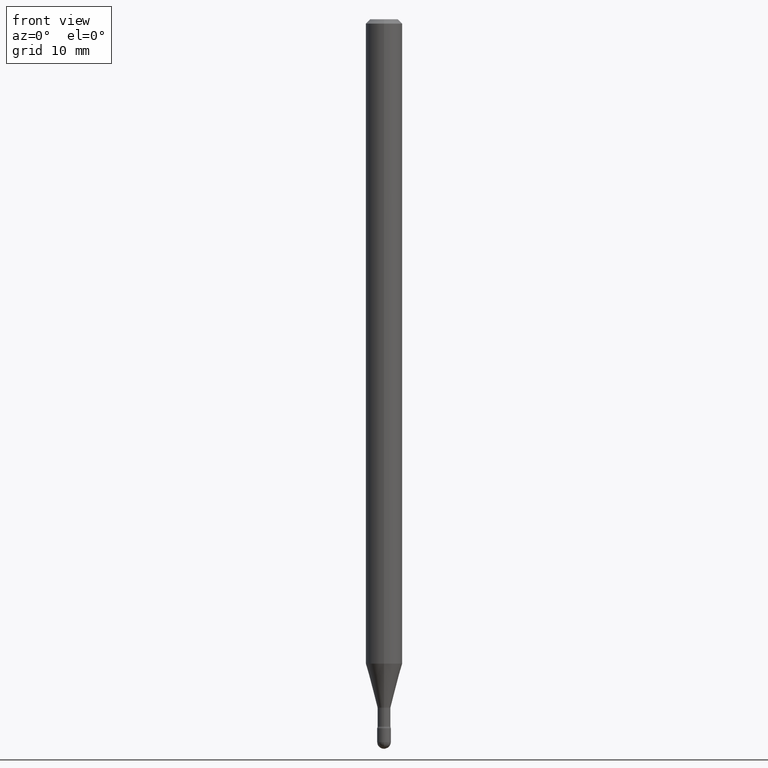
[diagram: clean part render]
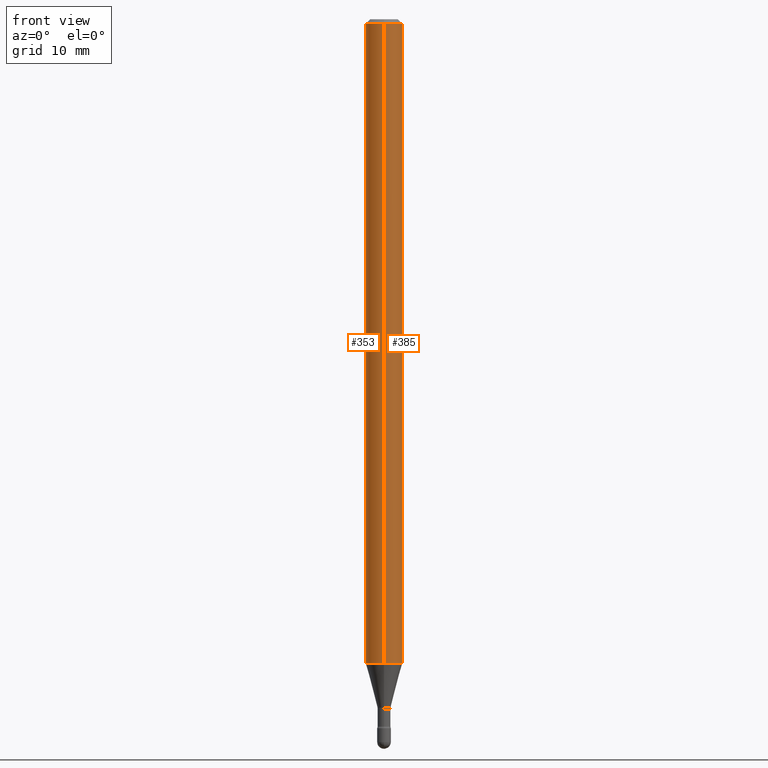
[diagram: same view with one multi-face feature highlighted, each face labeled with its STEP entity id]
A machine part, front view. The highlighted faces form ONE feature: a constant-radius fillet chain: 2 tangent blend faces with common blend radius 1.5875 mm. The faces share edges in the B-rep.
Their STEP definitions:
[1] entity #385 (Cylinder):
#8 = LINE ( 'NONE', #402, #455 ) ;
#15 = ORIENTED_EDGE ( 'NONE', *, *, #129, .T. ) ;
#62 = LINE ( 'NONE', #313, #201 ) ;
#83 = AXIS2_PLACEMENT_3D ( 'NONE', #440, #351, #84 ) ;
#84 = DIRECTION ( 'NONE',  ( -6.982962677686265922E-15, -1.000000000000000000, 3.491495492465867230E-15 ) ) ;
#91 = EDGE_CURVE ( 'NONE', #413, #165, #156, .T. ) ;
#101 = ORIENTED_EDGE ( 'NONE', *, *, #91, .T. ) ;
#104 = ORIENTED_EDGE ( 'NONE', *, *, #169, .F. ) ;
#113 = AXIS2_PLACEMENT_3D ( 'NONE', #359, #495, #173 ) ;
#120 = DIRECTION ( 'NONE',  ( -6.982962677686265922E-15, -1.000000000000000000, 4.370956789862821150E-15 ) ) ;
#129 = EDGE_CURVE ( 'NONE', #165, #405, #8, .T. ) ;
#131 = DIRECTION ( 'NONE',  ( -2.445458922763215307E-29, 3.491495492465866047E-15, 1.000000000000000000 ) ) ;
#156 = CIRCLE ( 'NONE', #179, 0.06250000000000000000 ) ;
#165 = VERTEX_POINT ( 'NONE', #265 ) ;
#169 = EDGE_CURVE ( 'NONE', #413, #503, #62, .T. ) ;
#173 = DIRECTION ( 'NONE',  ( -6.982962677686265922E-15, -1.000000000000000000, 3.483106191921935554E-15 ) ) ;
#179 = AXIS2_PLACEMENT_3D ( 'NONE', #310, #211, #120 ) ;
#181 = CARTESIAN_POINT ( 'NONE',  ( -4.364351673553376817E-16, -0.06250000000000772993, -2.208225147374217379 ) ) ;
#201 = VECTOR ( 'NONE', #131, 39.37007874015748143 ) ;
#211 = DIRECTION ( 'NONE',  ( -2.445458922763215307E-29, 3.491495492465866441E-15, 1.000000000000000000 ) ) ;
#238 = EDGE_CURVE ( 'NONE', #503, #405, #263, .T. ) ;
#263 = CIRCLE ( 'NONE', #113, 0.06250000000000000000 ) ;
#265 = CARTESIAN_POINT ( 'NONE',  ( 4.440892098501163573E-16, 0.06249999999999226313, -2.208225147374217823 ) ) ;
#282 = CARTESIAN_POINT ( 'NONE',  ( -4.364351673553912750E-16, -0.06250000000000005551, -0.01499999999999986587 ) ) ;
#295 = ORIENTED_EDGE ( 'NONE', *, *, #238, .F. ) ;
#310 = CARTESIAN_POINT ( 'NONE',  ( 5.400123890116396966E-29, -7.710008148406855528E-15, -2.208225147374217823 ) ) ;
#313 = CARTESIAN_POINT ( 'NONE',  ( -4.364351673553916201E-16, -0.06250000000000000000, 6.962918671703627158E-16 ) ) ;
#351 = DIRECTION ( 'NONE',  ( -2.445458922763215307E-29, 3.491495492465866441E-15, 1.000000000000000000 ) ) ;
#352 = FACE_OUTER_BOUND ( 'NONE', #551, .T. ) ;
#359 = CARTESIAN_POINT ( 'NONE',  ( 3.668188384144842719E-31, -5.237243238698828652E-17, -0.01500000000000008271 ) ) ;
#385 = ADVANCED_FACE ( 'NONE', ( #352 ), #397, .T. ) ;
#397 = CYLINDRICAL_SURFACE ( 'NONE', #83, 0.06250000000000000000 ) ;
#402 = CARTESIAN_POINT ( 'NONE',  ( 4.440892098500625669E-16, 0.06250000000000000000, 2.598549306121294107E-16 ) ) ;
#405 = VERTEX_POINT ( 'NONE', #419 ) ;
#413 = VERTEX_POINT ( 'NONE', #181 ) ;
#419 = CARTESIAN_POINT ( 'NONE',  ( 4.440892098501169490E-16, 0.06249999999999995837, -0.01500000000000030129 ) ) ;
#440 = CARTESIAN_POINT ( 'NONE',  ( -1.169113584055446105E-44, 1.669184350826100908E-30, 4.780733988912460139E-16 ) ) ;
#447 = DIRECTION ( 'NONE',  ( -2.445458922763215307E-29, 3.491495492465866047E-15, 1.000000000000000000 ) ) ;
#455 = VECTOR ( 'NONE', #447, 39.37007874015748143 ) ;
#495 = DIRECTION ( 'NONE',  ( -2.445458922763215307E-29, 3.491495492465866441E-15, 1.000000000000000000 ) ) ;
#503 = VERTEX_POINT ( 'NONE', #282 ) ;
#551 = EDGE_LOOP ( 'NONE', ( #101, #15, #295, #104 ) ) ;
[2] entity #353 (Cylinder):
#3 = ORIENTED_EDGE ( 'NONE', *, *, #169, .T. ) ;
#5 = CIRCLE ( 'NONE', #216, 0.06250000000000000000 ) ;
#8 = LINE ( 'NONE', #402, #455 ) ;
#13 = CARTESIAN_POINT ( 'NONE',  ( 5.400123890116396966E-29, -7.710008148406855528E-15, -2.208225147374217823 ) ) ;
#48 = EDGE_CURVE ( 'NONE', #405, #503, #5, .T. ) ;
#52 = ORIENTED_EDGE ( 'NONE', *, *, #48, .F. ) ;
#55 = DIRECTION ( 'NONE',  ( -2.445458922763215307E-29, 3.491495492465866441E-15, 1.000000000000000000 ) ) ;
#62 = LINE ( 'NONE', #313, #201 ) ;
#129 = EDGE_CURVE ( 'NONE', #165, #405, #8, .T. ) ;
#131 = DIRECTION ( 'NONE',  ( -2.445458922763215307E-29, 3.491495492465866047E-15, 1.000000000000000000 ) ) ;
#132 = DIRECTION ( 'NONE',  ( -2.445458922763215307E-29, 3.491495492465866441E-15, 1.000000000000000000 ) ) ;
#135 = DIRECTION ( 'NONE',  ( -6.982962677686265922E-15, -1.000000000000000000, 3.483106191921935554E-15 ) ) ;
#137 = ORIENTED_EDGE ( 'NONE', *, *, #129, .F. ) ;
#151 = EDGE_CURVE ( 'NONE', #165, #413, #386, .T. ) ;
#165 = VERTEX_POINT ( 'NONE', #265 ) ;
#169 = EDGE_CURVE ( 'NONE', #413, #503, #62, .T. ) ;
#177 = DIRECTION ( 'NONE',  ( -2.445458922763215307E-29, 3.491495492465866441E-15, 1.000000000000000000 ) ) ;
#181 = CARTESIAN_POINT ( 'NONE',  ( -4.364351673553376817E-16, -0.06250000000000772993, -2.208225147374217379 ) ) ;
#201 = VECTOR ( 'NONE', #131, 39.37007874015748143 ) ;
#216 = AXIS2_PLACEMENT_3D ( 'NONE', #542, #177, #135 ) ;
#217 = AXIS2_PLACEMENT_3D ( 'NONE', #444, #55, #477 ) ;
#229 = AXIS2_PLACEMENT_3D ( 'NONE', #13, #132, #480 ) ;
#247 = EDGE_LOOP ( 'NONE', ( #137, #364, #3, #52 ) ) ;
#265 = CARTESIAN_POINT ( 'NONE',  ( 4.440892098501163573E-16, 0.06249999999999226313, -2.208225147374217823 ) ) ;
#266 = CYLINDRICAL_SURFACE ( 'NONE', #217, 0.06250000000000000000 ) ;
#282 = CARTESIAN_POINT ( 'NONE',  ( -4.364351673553912750E-16, -0.06250000000000005551, -0.01499999999999986587 ) ) ;
#313 = CARTESIAN_POINT ( 'NONE',  ( -4.364351673553916201E-16, -0.06250000000000000000, 6.962918671703627158E-16 ) ) ;
#353 = ADVANCED_FACE ( 'NONE', ( #527 ), #266, .T. ) ;
#364 = ORIENTED_EDGE ( 'NONE', *, *, #151, .T. ) ;
#386 = CIRCLE ( 'NONE', #229, 0.06250000000000000000 ) ;
#402 = CARTESIAN_POINT ( 'NONE',  ( 4.440892098500625669E-16, 0.06250000000000000000, 2.598549306121294107E-16 ) ) ;
#405 = VERTEX_POINT ( 'NONE', #419 ) ;
#413 = VERTEX_POINT ( 'NONE', #181 ) ;
#419 = CARTESIAN_POINT ( 'NONE',  ( 4.440892098501169490E-16, 0.06249999999999995837, -0.01500000000000030129 ) ) ;
#444 = CARTESIAN_POINT ( 'NONE',  ( -1.169113584055446105E-44, 1.669184350826100908E-30, 4.780733988912460139E-16 ) ) ;
#447 = DIRECTION ( 'NONE',  ( -2.445458922763215307E-29, 3.491495492465866047E-15, 1.000000000000000000 ) ) ;
#455 = VECTOR ( 'NONE', #447, 39.37007874015748143 ) ;
#477 = DIRECTION ( 'NONE',  ( -6.982962677686265922E-15, -1.000000000000000000, 3.491495492465867230E-15 ) ) ;
#480 = DIRECTION ( 'NONE',  ( -6.982962677686265922E-15, -1.000000000000000000, 4.370956789862821150E-15 ) ) ;
#503 = VERTEX_POINT ( 'NONE', #282 ) ;
#527 = FACE_OUTER_BOUND ( 'NONE', #247, .T. ) ;
#542 = CARTESIAN_POINT ( 'NONE',  ( 3.668188384144842719E-31, -5.237243238698828652E-17, -0.01500000000000008271 ) ) ;